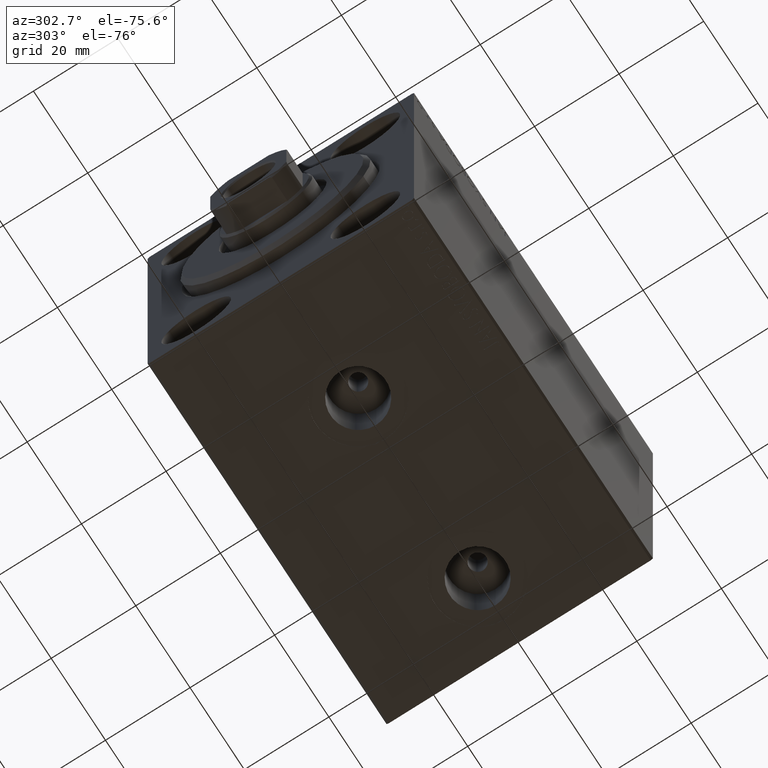
[diagram: clean part render]
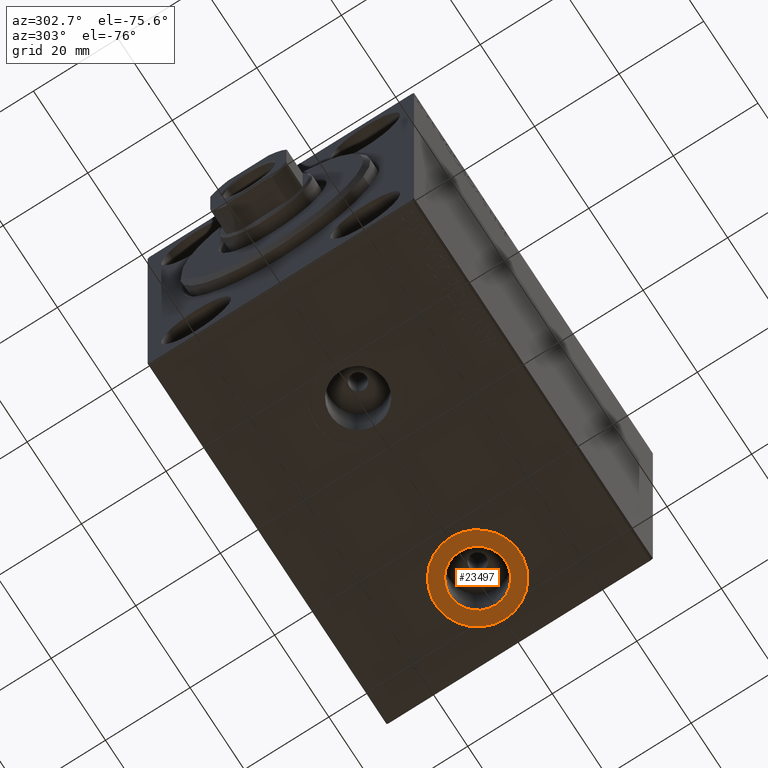
[diagram: same view with one face highlighted and labeled with its STEP entity id]
A machine part, auxiliary view. The second image highlights one B-rep face of the part: STEP entity #23497.
In plain terms, the highlighted planar face has unit normal (0, 0, -1).
Its self-contained STEP definition (entity closure, byte-faithful):
#1607 = AXIS2_PLACEMENT_3D ( 'NONE', #39854, #29597, #43849 ) ;
#3537 = CARTESIAN_POINT ( 'NONE',  ( 82.50000000000000000, -6.298679886106753753E-15, -42.40000000000000568 ) ) ;
#3749 = DIRECTION ( 'NONE',  ( -1.000000000000000000, 0.000000000000000000, -0.000000000000000000 ) ) ;
#5368 = CARTESIAN_POINT ( 'NONE',  ( 72.50000000000001421, -7.523326685254106813E-15, -42.40000000000000568 ) ) ;
#6013 = CARTESIAN_POINT ( 'NONE',  ( 65.92000000000000171, -7.523326685254106813E-15, -42.40000000000000568 ) ) ;
#6433 = FACE_OUTER_BOUND ( 'NONE', #19544, .T. ) ;
#7583 = CARTESIAN_POINT ( 'NONE',  ( 72.50000000000001421, -7.523326685254106813E-15, -42.40000000000000568 ) ) ;
#8347 = ORIENTED_EDGE ( 'NONE', *, *, #23337, .F. ) ;
#8441 = CARTESIAN_POINT ( 'NONE',  ( 72.50000000000001421, -7.523326685254106813E-15, -42.40000000000000568 ) ) ;
#8701 = DIRECTION ( 'NONE',  ( -1.000000000000000000, 0.000000000000000000, 0.000000000000000000 ) ) ;
#9174 = AXIS2_PLACEMENT_3D ( 'NONE', #19967, #10638, #3749 ) ;
#9830 = AXIS2_PLACEMENT_3D ( 'NONE', #7583, #27801, #10908 ) ;
#9979 = FACE_BOUND ( 'NONE', #28076, .T. ) ;
#10407 = AXIS2_PLACEMENT_3D ( 'NONE', #8441, #18878, #29101 ) ;
#10638 = DIRECTION ( 'NONE',  ( 0.000000000000000000, 0.000000000000000000, -1.000000000000000000 ) ) ;
#10908 = DIRECTION ( 'NONE',  ( -1.000000000000000000, 0.000000000000000000, 0.000000000000000000 ) ) ;
#11440 = EDGE_CURVE ( 'NONE', #42168, #29937, #13927, .T. ) ;
#13927 = CIRCLE ( 'NONE', #10407, 9.999999999999994671 ) ;
#18474 = DIRECTION ( 'NONE',  ( 0.000000000000000000, 0.000000000000000000, -1.000000000000000000 ) ) ;
#18878 = DIRECTION ( 'NONE',  ( 0.000000000000000000, 0.000000000000000000, -1.000000000000000000 ) ) ;
#19544 = EDGE_LOOP ( 'NONE', ( #37362, #20787 ) ) ;
#19967 = CARTESIAN_POINT ( 'NONE',  ( 72.50000000000001421, -7.523326685254106813E-15, -42.40000000000000568 ) ) ;
#20787 = ORIENTED_EDGE ( 'NONE', *, *, #37517, .T. ) ;
#23337 = EDGE_CURVE ( 'NONE', #29262, #26821, #28998, .T. ) ;
#23497 = ADVANCED_FACE ( 'NONE', ( #9979, #6433 ), #27534, .T. ) ;
#24862 = AXIS2_PLACEMENT_3D ( 'NONE', #5368, #18474, #8701 ) ;
#26821 = VERTEX_POINT ( 'NONE', #6013 ) ;
#27203 = ORIENTED_EDGE ( 'NONE', *, *, #27543, .F. ) ;
#27534 = PLANE ( 'NONE',  #9174 ) ;
#27543 = EDGE_CURVE ( 'NONE', #26821, #29262, #35541, .T. ) ;
#27801 = DIRECTION ( 'NONE',  ( 0.000000000000000000, 0.000000000000000000, -1.000000000000000000 ) ) ;
#28076 = EDGE_LOOP ( 'NONE', ( #27203, #8347 ) ) ;
#28998 = CIRCLE ( 'NONE', #9830, 6.580000000000002736 ) ;
#29101 = DIRECTION ( 'NONE',  ( -1.000000000000000000, 0.000000000000000000, 0.000000000000000000 ) ) ;
#29262 = VERTEX_POINT ( 'NONE', #32068 ) ;
#29432 = CARTESIAN_POINT ( 'NONE',  ( 62.50000000000001421, -7.523326685254106813E-15, -42.40000000000000568 ) ) ;
#29597 = DIRECTION ( 'NONE',  ( 0.000000000000000000, 0.000000000000000000, -1.000000000000000000 ) ) ;
#29937 = VERTEX_POINT ( 'NONE', #3537 ) ;
#32068 = CARTESIAN_POINT ( 'NONE',  ( 79.08000000000001251, -6.717509091415147771E-15, -42.40000000000000568 ) ) ;
#35541 = CIRCLE ( 'NONE', #24862, 6.580000000000002736 ) ;
#37362 = ORIENTED_EDGE ( 'NONE', *, *, #11440, .T. ) ;
#37517 = EDGE_CURVE ( 'NONE', #29937, #42168, #39967, .T. ) ;
#39854 = CARTESIAN_POINT ( 'NONE',  ( 72.50000000000001421, -7.523326685254106813E-15, -42.40000000000000568 ) ) ;
#39967 = CIRCLE ( 'NONE', #1607, 9.999999999999994671 ) ;
#42168 = VERTEX_POINT ( 'NONE', #29432 ) ;
#43849 = DIRECTION ( 'NONE',  ( -1.000000000000000000, 0.000000000000000000, 0.000000000000000000 ) ) ;